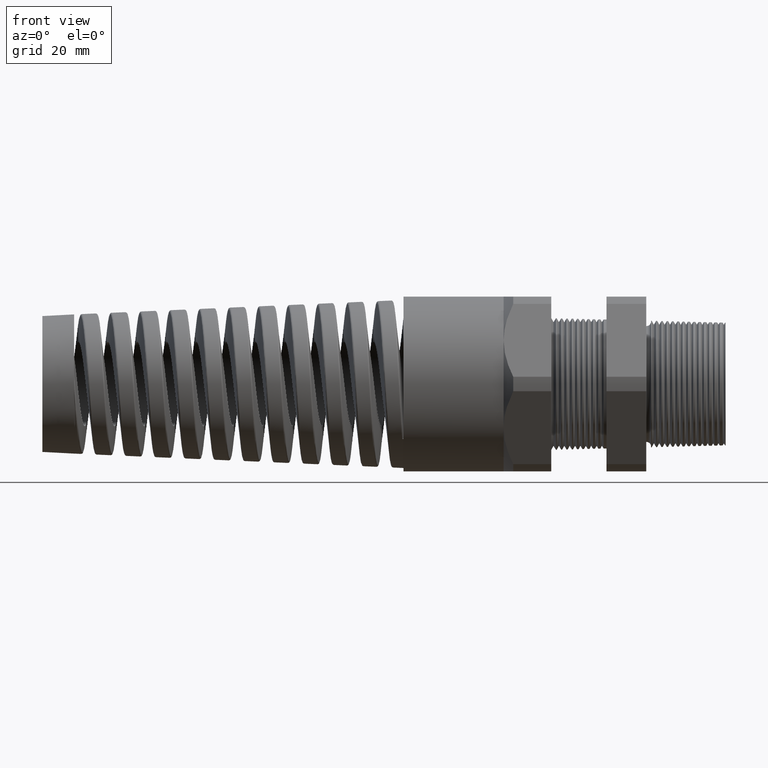
[diagram: clean part render]
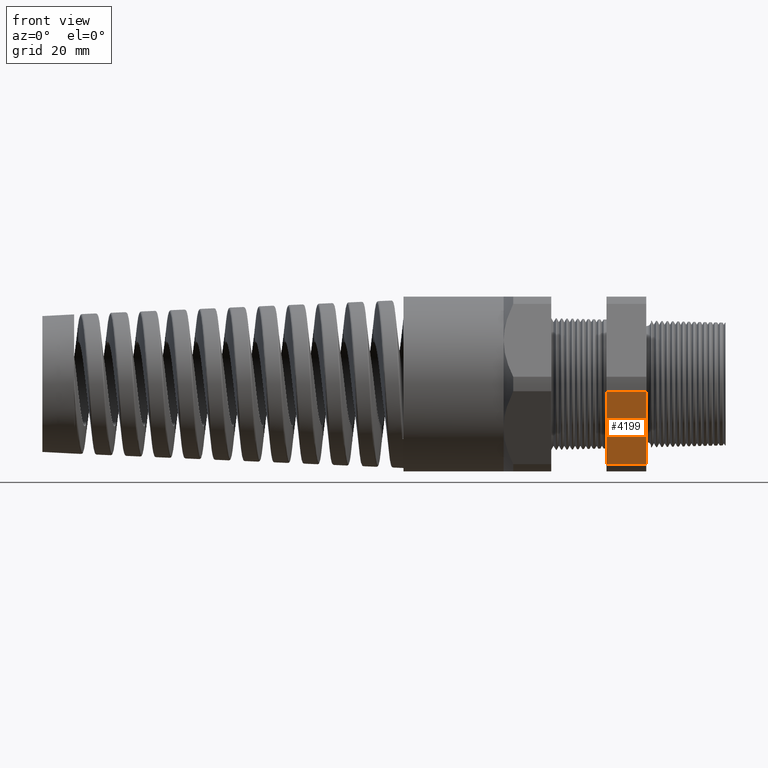
[diagram: same view with one face highlighted and labeled with its STEP entity id]
A machine part, front view. The second image highlights one B-rep face of the part: STEP entity #4199.
In plain terms, the highlighted planar face has unit normal (0, -0.866, -0.5).
Its self-contained STEP definition (entity closure, byte-faithful):
#3877 = ORIENTED_EDGE ( 'NONE', *, *, #7561, .F. ) ;
#3878 = ORIENTED_EDGE ( 'NONE', *, *, #4850, .F. ) ;
#3888 = EDGE_LOOP ( 'NONE', ( #3878, #3877, #4903, #4794 ) ) ;
#4199 = ADVANCED_FACE ( 'NONE', ( #7544 ), #7543, .T. ) ;
#4230 = VERTEX_POINT ( 'NONE', #7871 ) ;
#4794 = ORIENTED_EDGE ( 'NONE', *, *, #4795, .F. ) ;
#4795 = EDGE_CURVE ( 'NONE', #4812, #4230, #8932, .T. ) ;
#4812 = VERTEX_POINT ( 'NONE', #9017 ) ;
#4850 = EDGE_CURVE ( 'NONE', #7562, #4812, #8979, .T. ) ;
#4903 = ORIENTED_EDGE ( 'NONE', *, *, #4904, .T. ) ;
#4904 = EDGE_CURVE ( 'NONE', #7680, #4230, #9873, .T. ) ;
#7539 = DIRECTION ( 'NONE',  ( 0.0000000000000000000, 0.5000000000000000000, -0.8660254037844386000 ) ) ;
#7540 = DIRECTION ( 'NONE',  ( 0.0000000000000000000, -0.8660254037844387100, -0.5000000000000001100 ) ) ;
#7541 = CARTESIAN_POINT ( 'NONE',  ( 0.2800000000000000300, -0.4063420493440888500, -0.5961949252843790100 ) ) ;
#7542 = AXIS2_PLACEMENT_3D ( 'NONE', #7541, #7540, #7539 ) ;
#7543 = PLANE ( 'NONE',  #7542 ) ;
#7544 = FACE_OUTER_BOUND ( 'NONE', #3888, .T. ) ;
#7561 = EDGE_CURVE ( 'NONE', #7680, #7562, #20223, .T. ) ;
#7562 = VERTEX_POINT ( 'NONE', #20219 ) ;
#7680 = VERTEX_POINT ( 'NONE', #20429 ) ;
#7871 = CARTESIAN_POINT ( 'NONE',  ( -0.6052755905511810800, -0.7194909755756818700, -0.05380507471562150100 ) ) ;
#8929 = DIRECTION ( 'NONE',  ( 0.0000000000000000000, -0.5000000000000000000, 0.8660254037844386000 ) ) ;
#8930 = VECTOR ( 'NONE', #8929, 39.37007874015748900 ) ;
#8931 = CARTESIAN_POINT ( 'NONE',  ( -0.6052755905511810800, -0.2379165124598852700, -0.8879165124598851200 ) ) ;
#8932 = LINE ( 'NONE', #8931, #8930 ) ;
#8976 = DIRECTION ( 'NONE',  ( -1.000000000000000000, 0.0000000000000000000, 0.0000000000000000000 ) ) ;
#8977 = VECTOR ( 'NONE', #8976, 39.37007874015748100 ) ;
#8978 = CARTESIAN_POINT ( 'NONE',  ( 0.2800000000000000300, -0.4063420493440886300, -0.5961949252843790100 ) ) ;
#8979 = LINE ( 'NONE', #8978, #8977 ) ;
#9017 = CARTESIAN_POINT ( 'NONE',  ( -0.6052755905511810800, -0.4063420493440886300, -0.5961949252843790100 ) ) ;
#9849 = DIRECTION ( 'NONE',  ( -1.000000000000000000, 0.0000000000000000000, 0.0000000000000000000 ) ) ;
#9850 = VECTOR ( 'NONE', #9849, 39.37007874015748100 ) ;
#9851 = CARTESIAN_POINT ( 'NONE',  ( 0.2800000000000000300, -0.7194909755756818700, -0.05380507471562150100 ) ) ;
#9873 = LINE ( 'NONE', #9851, #9850 ) ;
#20219 = CARTESIAN_POINT ( 'NONE',  ( -0.3100000000000000000, -0.4063420493440886300, -0.5961949252843790100 ) ) ;
#20220 = DIRECTION ( 'NONE',  ( 0.0000000000000000000, 0.5000000000000000000, -0.8660254037844386000 ) ) ;
#20221 = VECTOR ( 'NONE', #20220, 39.37007874015748900 ) ;
#20222 = CARTESIAN_POINT ( 'NONE',  ( -0.3100000000000000000, -0.2379165124598855400, -0.8879165124598854500 ) ) ;
#20223 = LINE ( 'NONE', #20222, #20221 ) ;
#20429 = CARTESIAN_POINT ( 'NONE',  ( -0.3100000000000000000, -0.7194909755756818700, -0.05380507471562150100 ) ) ;